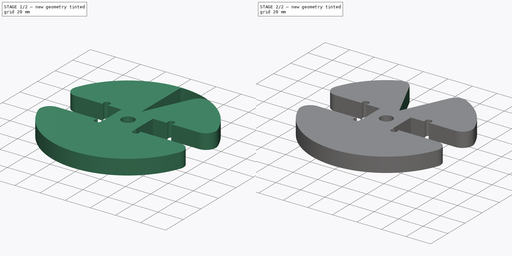
[diagram: build sequence overview — one tinted view per stage of 2, left to right]
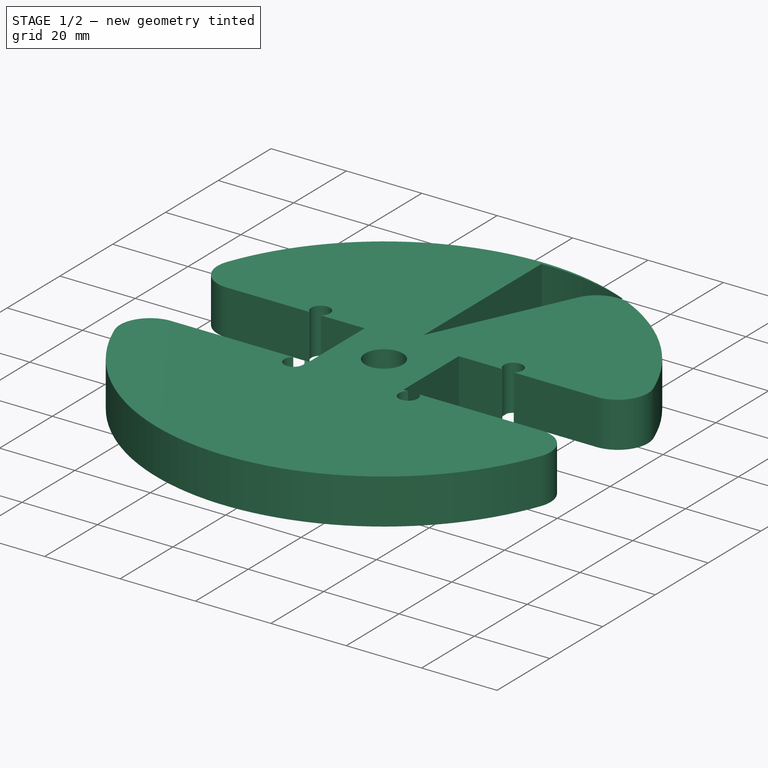
[diagram: stage 1 of 2 — iso view after this stage's code; geometry added in this stage tinted green]
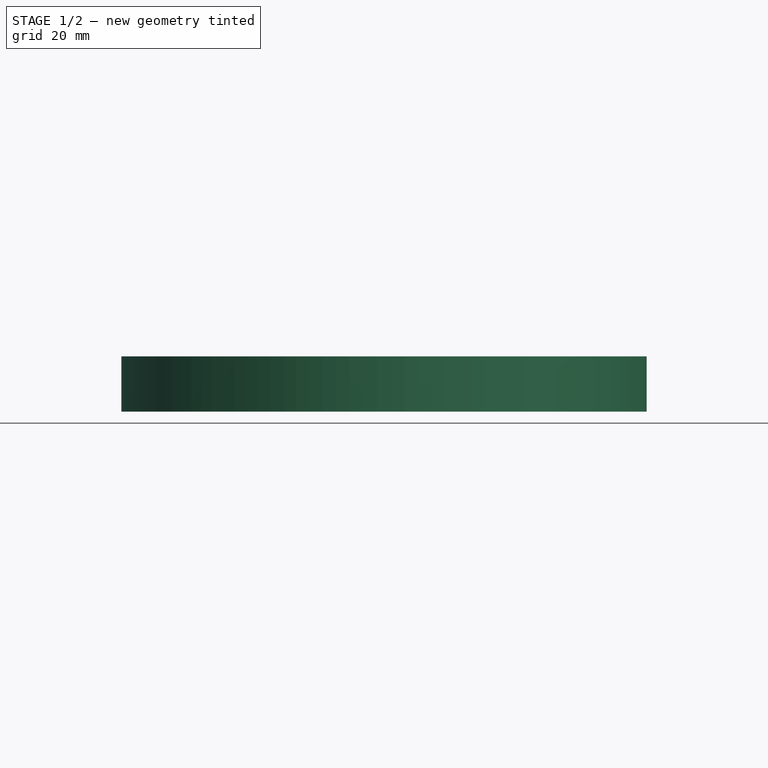
[diagram: stage 1 of 2 — front view after this stage's code; geometry added in this stage tinted green]
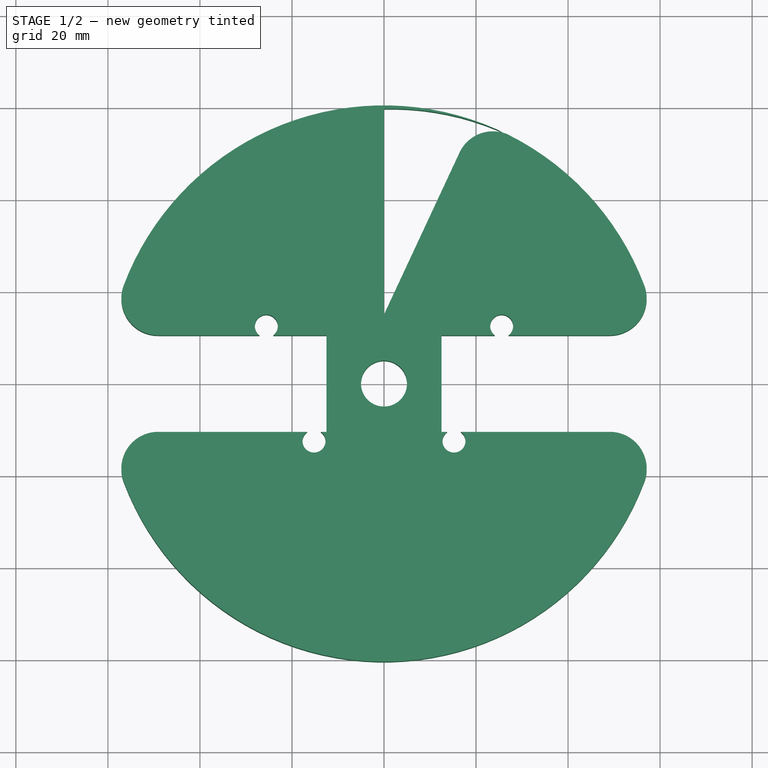
[diagram: stage 1 of 2 — top view after this stage's code; geometry added in this stage tinted green]
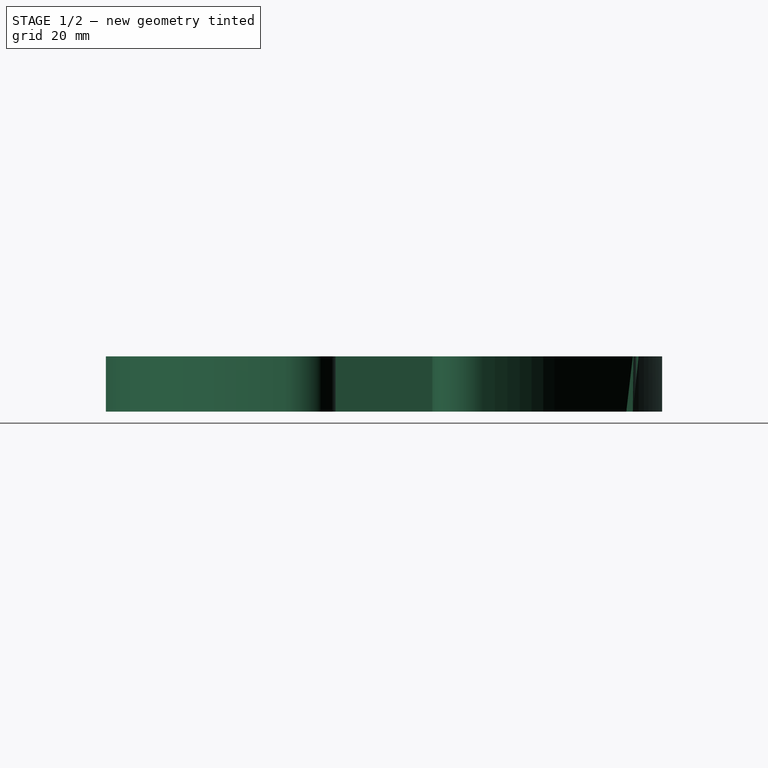
[diagram: stage 1 of 2 — right view after this stage's code; geometry added in this stage tinted green]
FCSTD DOCUMENT  (FreeCAD 1.0R39109 (Git))
Label: Stator_CoilWinder_Cheek_Notch
Comment: Front Cheek
License: All rights reserved
LicenseURL: http://en.wikipedia.org/wiki/All_rights_reserved
objects: Spreadsheet::Sheet×1, Sketcher::SketchObject×1, App::Link×1, PartDesign::SubShapeBinder×1, PartDesign::FeatureBase×1, PartDesign::Pocket×1, PartDesign::Mirrored×1, PartDesign::Body×1
note: 11 computed .brp shape members not serialized (recipe doc carries the construction recipe); baked Part::Feature solids carry a one-line shape summary decoded from their .brp
EXTERNAL_REF file=../../../Master_of_Puppets.FCStd obj=Alternator
EXTERNAL_REF file=../../../Master_of_Puppets.FCStd obj=Spreadsheet
EXTERNAL_REF file=Stator_CoilWinder_Cheek.FCStd obj=PolarPattern001Body
EXTERNAL_REF file=Stator_CoilWinder_Cheek_Triangular.FCStd obj=PolarPattern001Body

FEATURE [Spreadsheet::Sheet] Spreadsheet
  cells = A1='Inputs; A2='Spreadsheet; A3='MagnetLength; B3(MagnetLength)==Master_of_Puppets#Spreadsheet.MagnetLength; A4='CoilType; B4(CoilType)==Master_of_Puppets#Spreadsheet.CoilType; A5='CoilHoleWidthAtOuterRadius; B5(CoilHoleWidthAtOuterRadius)==Master_of_Puppets#Spreadsheet.CoilHoleWidthAtOuterRadius; A6='RectangularVerticalDistanceOfHolesFromCenter; B6(RectangularLargestDistanceOfHolesFromCenter)==Master_of_Puppets#Alternator.RectangularVerticalDistanceOfHolesFromCenter; A7='Alternator; A8='CoilWinderDiskRadius; B8(CoilWinderDiskRadius)==Master_of_Puppets#Alternator.CoilWinderDiskRadius; A9='CoilWinderPinRadius; B9(CoilWinderPinRadius)==Master_of_Puppets#Alternator.CoilWinderPinRadius; A10='CoilWinderDiskFillet; B10(CoilWinderDiskFillet)==Master_of_Puppets#Alternator.CoilWinderDiskFillet; A11='TriangularCoilWinderCircumradius; B11(TriangularCoilWinderCircumradius)==Master_of_Puppets#Alternator.TriangularCoilWinderCircumradius; A12='TriangularVerticalDistanceOfHolesFromCenter; B12(TriangularVerticalDistanceOfHolesFromCenter)==Master_of_Puppets#Alternator.TriangularVerticalDistanceOfHolesFromCenter; C12='With respect to center of holes; A13='Static; A14='NotchAngle; B14(NotchAngle)=50; A15='Calculated; A16='Stator_CoilWinder_Cheek; B16(Stator_CoilWinder_Cheek)==CoilType != 3 ? <<Stator_CoilWinder_Cheek>>#<<Stator_CoilWinder_Cheek>>._self : <<Stator_CoilWinder_Cheek_Triangular>>#<<Stator_CoilWinder_Cheek>>._self; A17='DistanceOfNotchFromCenter; B17(DistanceOfNotchFromCenter)==(CoilType != 3 ? RectangularLargestDistanceOfHolesFromCenter : TriangularVerticalDistanceOfHolesFromCenter) + CoilWinderPinRadius
FEATURE [Sketcher::SketchObject] Sketch004  label="NotchSketch"
  ArcFitTolerance = 0
  AttachmentSupport = -> [XY_Plane001]
  FullyConstrained = true
  MakeInternals = false
  MapMode = 5
  Placement = pos=(0,0,0) rot=(0,1,0;3.14159rad)
  expr: Constraints[11] = Spreadsheet.NotchAngle / 2
  expr: Constraints[1] = Spreadsheet.DistanceOfNotchFromCenter
  expr: Constraints[3] = Spreadsheet.CoilWinderDiskRadius
  expr: Constraints[5] = Spreadsheet.CoilWinderDiskFillet
  expr: Constraints[6] = Spreadsheet.CoilWinderDiskRadius
  sketch-geometry (5):
    g0: Circle [constr] CenterX=0 CenterY=0 CenterZ=0 NormalX=0 NormalY=0 NormalZ=1 AngleXU=0 Radius=60.4591
    g1: LineSegment StartX=0 StartY=15 StartZ=0 EndX=-16.4152 EndY=50.2025 EndZ=0
    g2: ArcOfCircle CenterX=-23.6656 CenterY=46.8215 CenterZ=0 NormalX=0 NormalY=0 NormalZ=1 AngleXU=0 Radius=8 StartAngle=0.436332 EndAngle=2.00713
    g3: ArcOfCircle CenterX=-1.49549 CenterY=-0.722529 CenterZ=0 NormalX=0 NormalY=0 NormalZ=1 AngleXU=0 Radius=60.4591 StartAngle=1.54606 EndAngle=2.00713
    g4: LineSegment StartX=0 StartY=15 StartZ=0 EndX=0 EndY=59.718 EndZ=0
  constraints (14):
    c: PointOnObject(g1,g-2)
    c: DistanceY(g-1,g1) = 15
    c: Coincident(g0,g-1)
    c: Radius(g0) = 60.4591
    c: Tangent(g1,g2) = -1.5708
    c: Radius(g2) = 8
    c: Radius(g3) = 60.4591
    c: Angle(g2) = 1.5708
    c: Coincident(g4,g1)
    c: Coincident(g4,g3)
    c: Vertical(g4)
    c: Angle(g4,g1) = 0.436332
    c: PointOnObject(g2,g0)
    c: Tangent(g2,g3) = -1.5708
FEATURE [App::Link] Link  label="Stator_CoilWinder_Cheek"
  LinkedObject = -> <external Stator_CoilWinder_Cheek.FCStd>#PolarPattern001Body
  expr: LinkedObject = Spreadsheet.Stator_CoilWinder_Cheek
FEATURE [PartDesign::SubShapeBinder] Binder
  BindCopyOnChange = 0
  BindMode = 0
  ClaimChildren = true
  Context = -> PolarPattern001Body [Binder.]
  Fuse = false
  MakeFace = true
  OffsetFill = false
  OffsetIntersection = false
  OffsetJoinType = 0
  OffsetOpenResult = false
  PartialLoad = false
  Refine = true
  Relative = true
  Support = -> [Link]
  _Version = 2
FEATURE [PartDesign::FeatureBase] BaseFeature
  BaseFeature = -> Binder
  Suppressed = false
FEATURE [PartDesign::Pocket] Pocket  label="NotchPocket"
  BaseFeature = -> BaseFeature
  Direction = (0,0,1)
  Length = 5
  Length2 = 100
  Profile = -> Sketch004
  Suppressed = false
  Type = 1
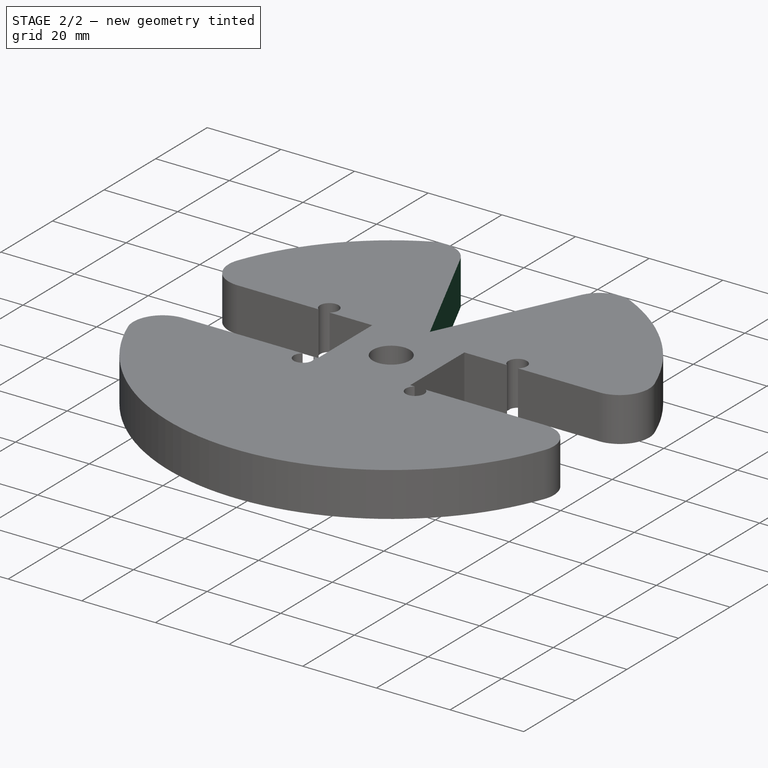
[diagram: stage 2 of 2 — iso view after this stage's code; geometry added in this stage tinted green]
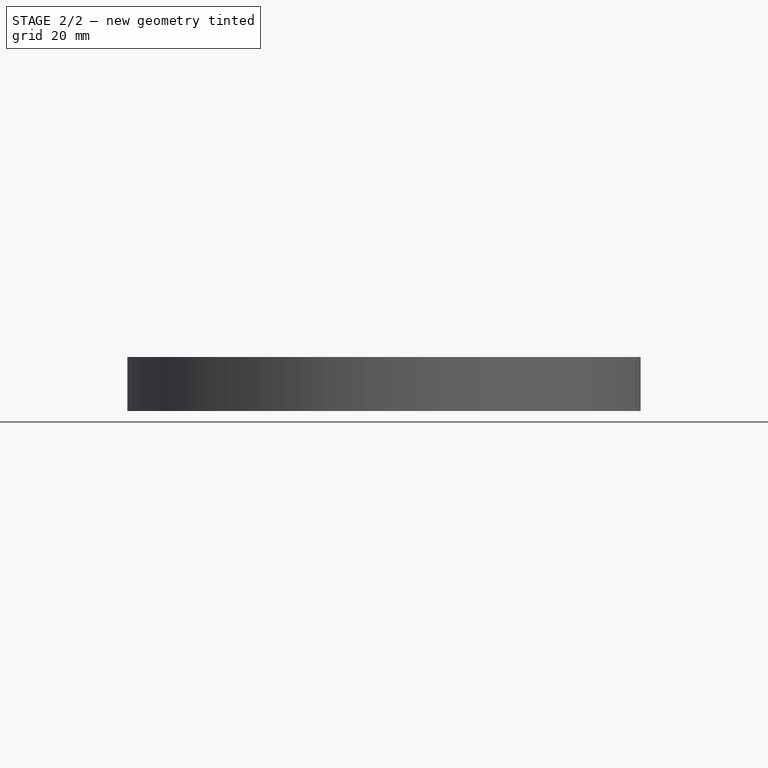
[diagram: stage 2 of 2 — front view after this stage's code; geometry added in this stage tinted green]
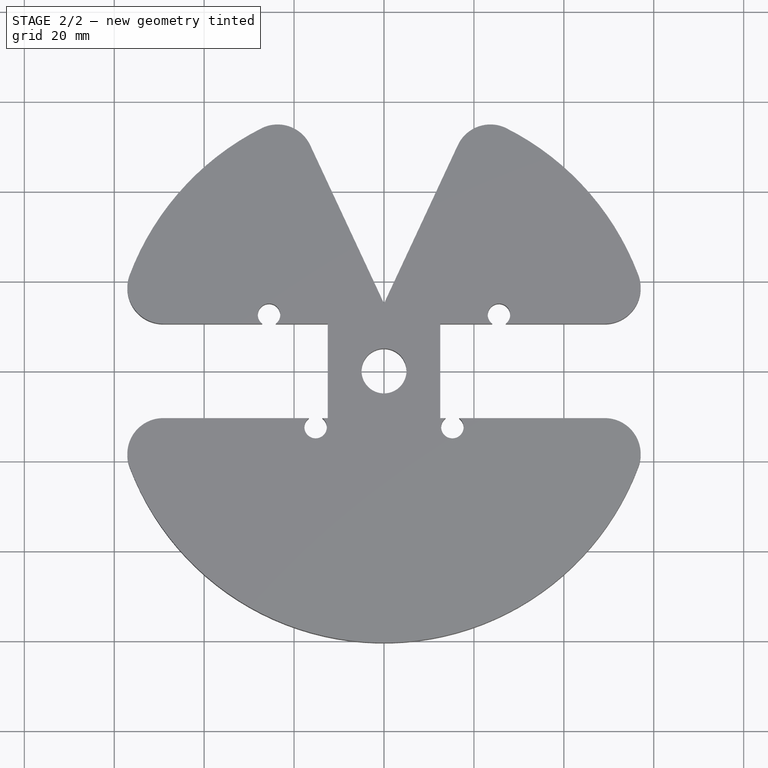
[diagram: stage 2 of 2 — top view after this stage's code; geometry added in this stage tinted green]
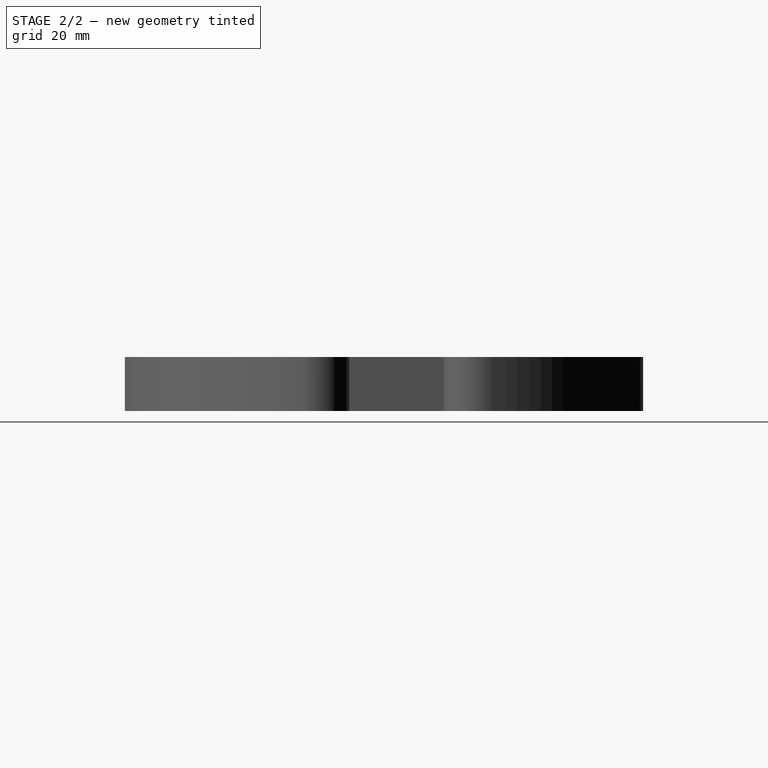
[diagram: stage 2 of 2 — right view after this stage's code; geometry added in this stage tinted green]
FEATURE [PartDesign::Mirrored] Mirrored
  BaseFeature = -> Pocket
  MirrorPlane = -> Sketch004 [V_Axis]
  Originals = -> [Pocket]
  Suppressed = false
  TransformMode = 0
FEATURE [PartDesign::Body] PolarPattern001Body  label="Stator_CoilWinder_Cheek_Notch"
  AllowCompound = false
  BaseFeature = -> Binder
  Group = -> [BaseFeature,Sketch004,Binder,Pocket,Mirrored]
  Openafpm_Flat = true
  Origin = -> Origin001
  Tip = -> Mirrored
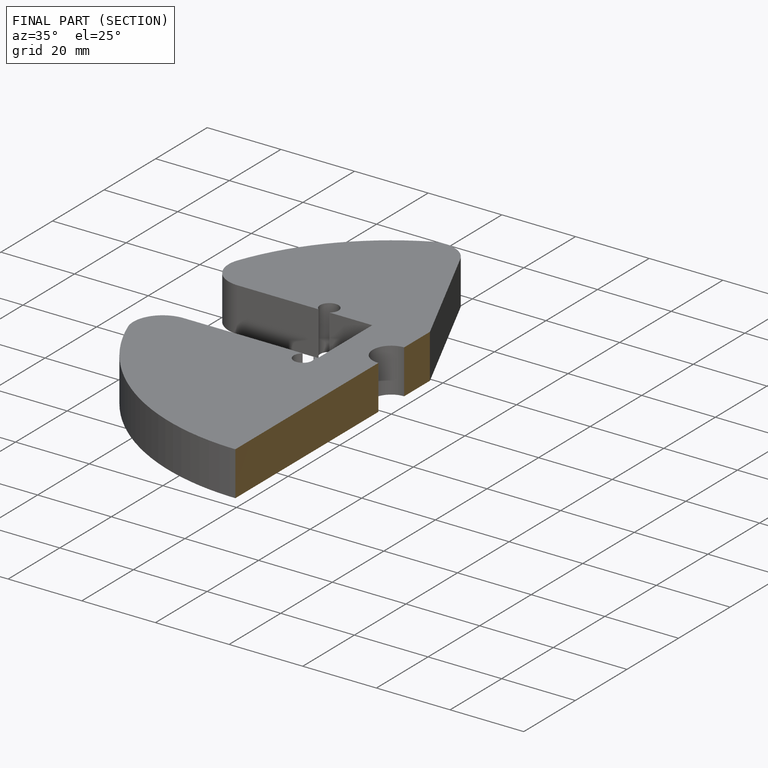
[diagram: finished part — half-section view (interior)]
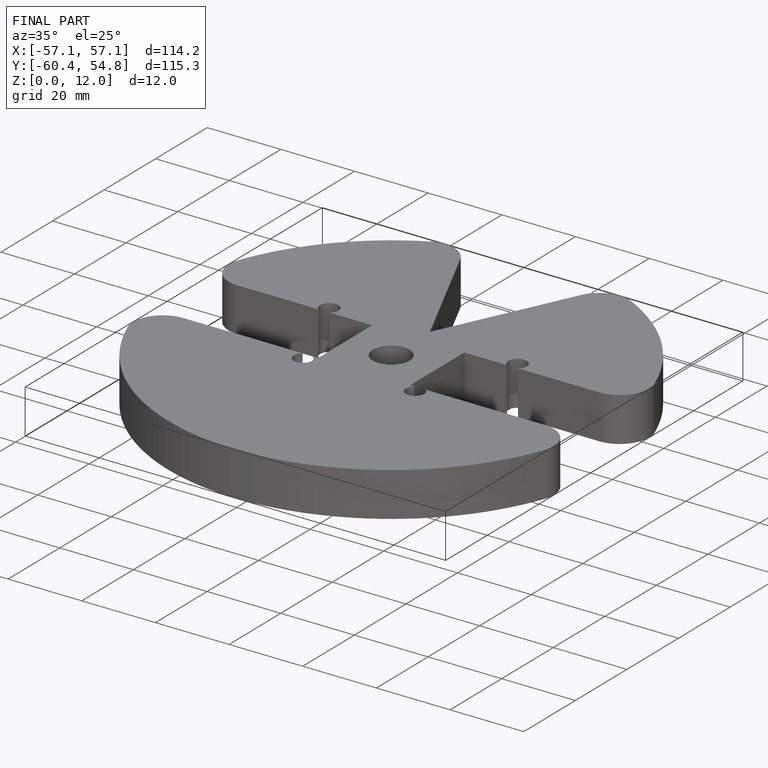
[diagram: finished part — iso view with bounding-box wireframe]
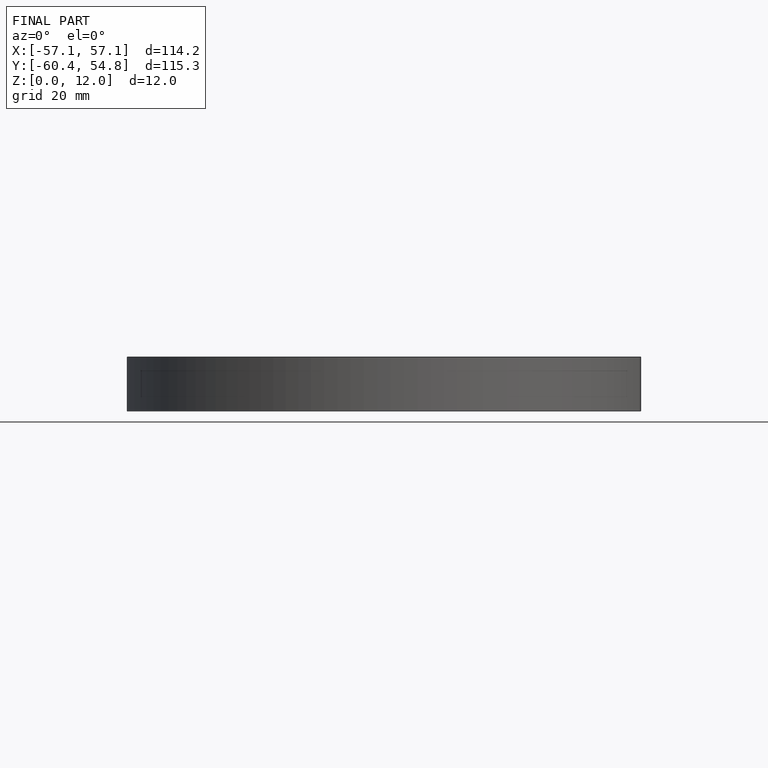
[diagram: finished part — front view with bounding-box wireframe]
